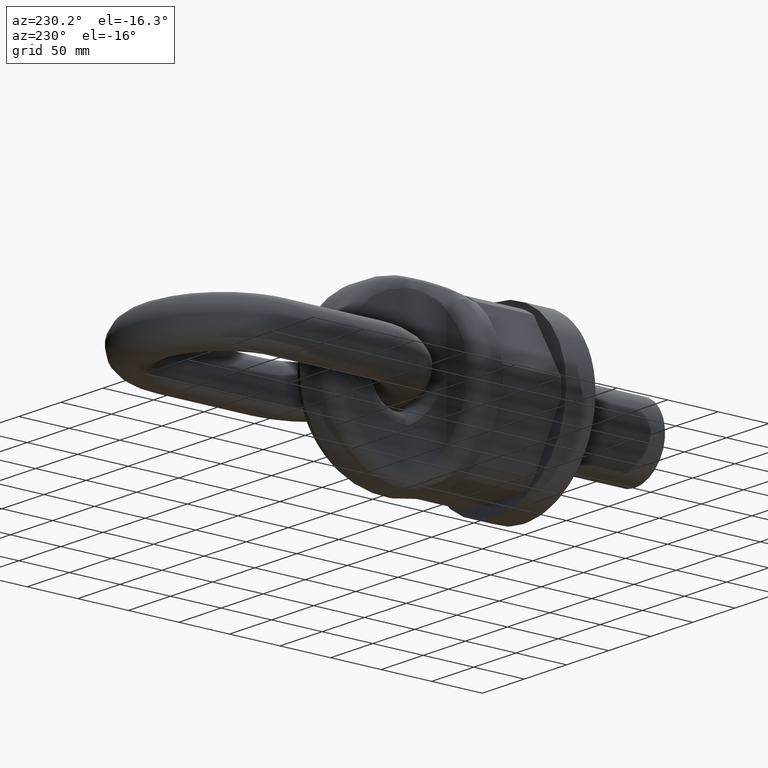
[diagram: clean part render]
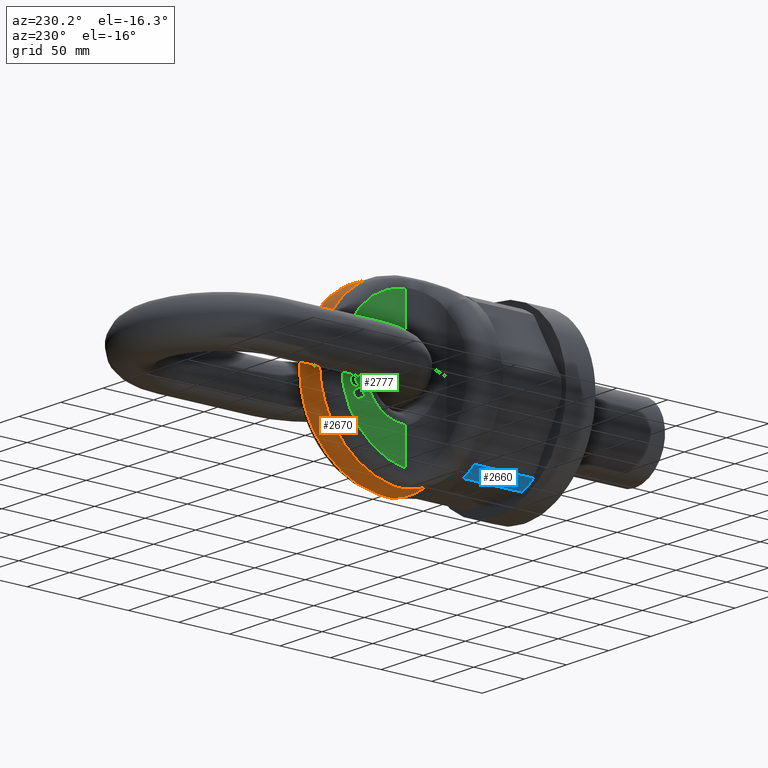
[diagram: same view with three faces highlighted in distinct colors, each labeled with its STEP entity id]
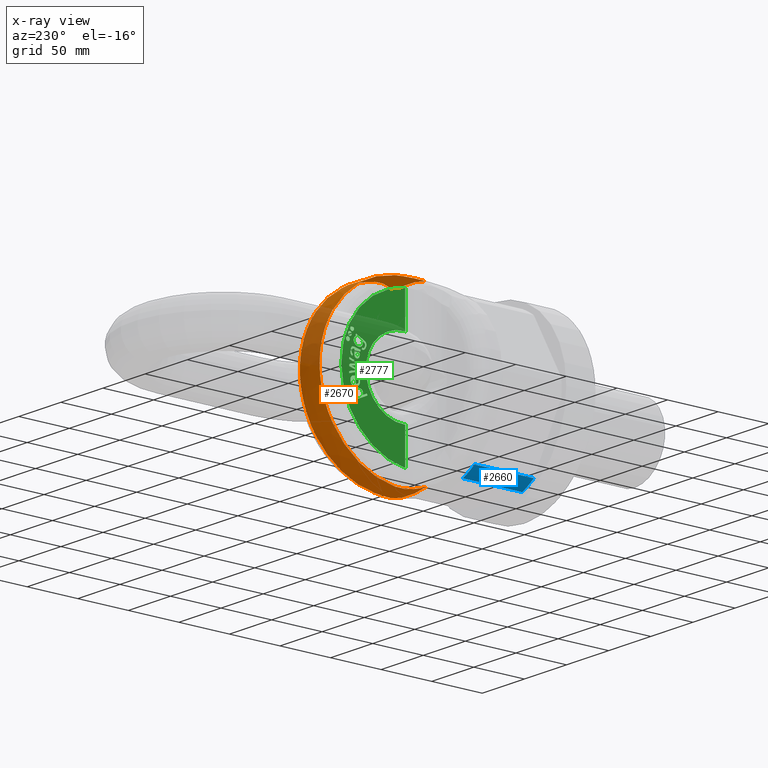
[diagram: x-ray of the same camera — body ghosted, the three highlighted faces saturated]
A machine part, auxiliary view with three faces highlighted in distinct colors.
The next image is the same camera in x-ray (body ghosted, the three faces saturated) — at least one of them is partly hidden behind the body in this view.
Their STEP definitions:

[orange] entity #2670 — the highlighted spherical surface has radius 85 mm.
#315=SPHERICAL_SURFACE('',#5660,85.);
#361=B_SPLINE_CURVE_WITH_KNOTS('',3,(#7089,#7090,#7091,#7092,#7093,#7094),
 .UNSPECIFIED.,.F.,.F.,(4,2,4),(0.,0.499999999999999,1.),.UNSPECIFIED.);
#362=B_SPLINE_CURVE_WITH_KNOTS('',3,(#7098,#7099,#7100,#7101,#7102,#7103),
 .UNSPECIFIED.,.F.,.F.,(4,2,4),(0.,0.500000000000001,1.),.UNSPECIFIED.);
#363=B_SPLINE_CURVE_WITH_KNOTS('',3,(#7104,#7105,#7106,#7107,#7108,#7109),
 .UNSPECIFIED.,.F.,.F.,(4,2,4),(0.,0.499999999999999,1.),.UNSPECIFIED.);
#364=B_SPLINE_CURVE_WITH_KNOTS('',3,(#7113,#7114,#7115,#7116,#7117,#7118),
 .UNSPECIFIED.,.F.,.F.,(4,2,4),(0.,0.500000000000001,1.),.UNSPECIFIED.);
#1822=FACE_OUTER_BOUND('',#3106,.T.);
#2670=ADVANCED_FACE('',(#1822),#315,.T.);
#3106=EDGE_LOOP('',(#3530,#3531,#3532,#3533,#3534,#3535,#3536,#3537));
#3530=ORIENTED_EDGE('',*,*,#5068,.F.);
#3531=ORIENTED_EDGE('',*,*,#5075,.T.);
#3532=ORIENTED_EDGE('',*,*,#5076,.T.);
#3533=ORIENTED_EDGE('',*,*,#5077,.T.);
#3534=ORIENTED_EDGE('',*,*,#5072,.F.);
#3535=ORIENTED_EDGE('',*,*,#5078,.T.);
#3536=ORIENTED_EDGE('',*,*,#5079,.T.);
#3537=ORIENTED_EDGE('',*,*,#5080,.T.);
#4655=VERTEX_POINT('',#7047);
#4656=VERTEX_POINT('',#7049);
#4659=VERTEX_POINT('',#7073);
#4660=VERTEX_POINT('',#7075);
#4662=VERTEX_POINT('',#7095);
#4663=VERTEX_POINT('',#7097);
#4664=VERTEX_POINT('',#7110);
#4665=VERTEX_POINT('',#7112);
#5068=EDGE_CURVE('',#4655,#4656,#5562,.T.);
#5072=EDGE_CURVE('',#4659,#4660,#5564,.T.);
#5075=EDGE_CURVE('',#4655,#4662,#361,.T.);
#5076=EDGE_CURVE('',#4662,#4663,#5566,.T.);
#5077=EDGE_CURVE('',#4663,#4660,#362,.T.);
#5078=EDGE_CURVE('',#4659,#4664,#363,.T.);
#5079=EDGE_CURVE('',#4664,#4665,#5567,.T.);
#5080=EDGE_CURVE('',#4665,#4656,#364,.T.);
#5562=CIRCLE('',#5653,83.8560735849427);
#5564=CIRCLE('',#5655,83.8560735849427);
#5566=CIRCLE('',#5658,84.1875560268504);
#5567=CIRCLE('',#5659,84.1875560268504);
#5653=AXIS2_PLACEMENT_3D('',#7048,#5969,#5970);
#5655=AXIS2_PLACEMENT_3D('',#7074,#5973,#5974);
#5658=AXIS2_PLACEMENT_3D('',#7096,#5979,#5980);
#5659=AXIS2_PLACEMENT_3D('',#7111,#5981,#5982);
#5660=AXIS2_PLACEMENT_3D('',#7119,#5983,#5984);
#5969=DIRECTION('',(0.,-1.,0.));
#5970=DIRECTION('',(0.,0.,-1.));
#5973=DIRECTION('',(0.,-1.,0.));
#5974=DIRECTION('',(0.,0.,-1.));
#5979=DIRECTION('',(1.,2.80359349652817E-16,2.34291072916505E-15));
#5980=DIRECTION('',(2.8847646623605E-16,-1.,6.58847756319972E-31));
#5981=DIRECTION('',(-1.,2.80359349652817E-16,0.));
#5982=DIRECTION('',(-2.8847646623605E-16,-1.,0.));
#5983=DIRECTION('',(6.12323399573677E-17,-1.,0.));
#5984=DIRECTION('',(1.,0.,0.));
#7047=CARTESIAN_POINT('',(-19.3766860398297,114.101837426599,-81.5866724115967));
#7048=CARTESIAN_POINT('',(0.,114.101837426599,0.));
#7049=CARTESIAN_POINT('',(19.3766860398299,114.101837426599,-81.5866724115967));
#7073=CARTESIAN_POINT('',(19.3766860398299,114.101837426599,81.5866724115967));
#7074=CARTESIAN_POINT('',(0.,114.101837426599,0.));
#7075=CARTESIAN_POINT('',(-19.3766860398301,114.101837426599,81.5866724115966));
#7089=CARTESIAN_POINT('',(-19.3766860398297,114.101837426599,-81.5866724115967));
#7090=CARTESIAN_POINT('',(-16.9548190947046,117.489688953281,-82.7389766291779));
#7091=CARTESIAN_POINT('',(-15.0325226436263,121.262971500498,-83.4994581279985));
#7092=CARTESIAN_POINT('',(-12.3936445152548,129.427238348949,-84.1895739627444));
#7093=CARTESIAN_POINT('',(-11.7241379310343,133.672876030424,-84.1073819787326));
#7094=CARTESIAN_POINT('',(-11.7241379310343,137.965517241379,-83.5956521350594));
#7095=CARTESIAN_POINT('',(-11.7241379310343,137.965517241379,-83.5956521350594));
#7096=CARTESIAN_POINT('',(-11.7241379310345,128.,-2.74686085488316E-14));
#7097=CARTESIAN_POINT('',(-11.7241379310347,137.965517241379,83.5956521350593));
#7098=CARTESIAN_POINT('',(-11.7241379310347,137.965517241379,83.5956521350593));
#7099=CARTESIAN_POINT('',(-11.7241379310347,133.671597519416,84.1075343912464));
#7100=CARTESIAN_POINT('',(-12.3933751738419,129.427306287298,84.1897361149016));
#7101=CARTESIAN_POINT('',(-15.0341766274961,121.258620101297,83.4989338179162));
#7102=CARTESIAN_POINT('',(-16.9546433285234,117.48993482547,82.7390602572701));
#7103=CARTESIAN_POINT('',(-19.3766860398301,114.101837426599,81.5866724115966));
#7104=CARTESIAN_POINT('',(19.3766860398299,114.101837426599,81.5866724115967));
#7105=CARTESIAN_POINT('',(16.9548190947048,117.489688953281,82.7389766291779));
#7106=CARTESIAN_POINT('',(15.0325226436265,121.262971500498,83.4994581279985));
#7107=CARTESIAN_POINT('',(12.393644515255,129.427238348949,84.1895739627444));
#7108=CARTESIAN_POINT('',(11.7241379310345,133.672876030424,84.1073819787325));
#7109=CARTESIAN_POINT('',(11.7241379310345,137.965517241379,83.5956521350594));
#7110=CARTESIAN_POINT('',(11.7241379310345,137.965517241379,83.5956521350594));
#7111=CARTESIAN_POINT('',(11.7241379310345,128.,0.));
#7112=CARTESIAN_POINT('',(11.7241379310345,137.965517241379,-83.5956521350594));
#7113=CARTESIAN_POINT('',(11.7241379310345,137.965517241379,-83.5956521350594));
#7114=CARTESIAN_POINT('',(11.7241379310345,133.671597519416,-84.1075343912464));
#7115=CARTESIAN_POINT('',(12.3933751738417,129.427306287298,-84.1897361149017));
#7116=CARTESIAN_POINT('',(15.0341766274959,121.258620101297,-83.4989338179162));
#7117=CARTESIAN_POINT('',(16.9546433285232,117.48993482547,-82.7390602572701));
#7118=CARTESIAN_POINT('',(19.3766860398299,114.101837426599,-81.5866724115967));
#7119=CARTESIAN_POINT('',(0.,128.,0.));

[blue] entity #2660 — the highlighted cylindrical surface (partial cylindrical patch) has radius 79.53 mm, axis along (-0, 1, 0).
#1818=FACE_OUTER_BOUND('',#3083,.T.);
#2026=CYLINDRICAL_SURFACE('',#5635,79.5299995808709);
#2050=LINE('',#6611,#2306);
#2054=LINE('',#6619,#2310);
#2306=VECTOR('',#5848,1.);
#2310=VECTOR('',#5854,1.);
#2660=ADVANCED_FACE('',(#1818),#2026,.T.);
#3083=EDGE_LOOP('',(#3424,#3425,#3426,#3427));
#3424=ORIENTED_EDGE('',*,*,#4951,.F.);
#3425=ORIENTED_EDGE('',*,*,#4960,.T.);
#3426=ORIENTED_EDGE('',*,*,#4975,.T.);
#3427=ORIENTED_EDGE('',*,*,#4964,.T.);
#4553=VERTEX_POINT('',#6591);
#4554=VERTEX_POINT('',#6593);
#4561=VERTEX_POINT('',#6612);
#4564=VERTEX_POINT('',#6620);
#4951=EDGE_CURVE('',#4553,#4554,#5543,.T.);
#4960=EDGE_CURVE('',#4553,#4561,#2050,.T.);
#4964=EDGE_CURVE('',#4564,#4554,#2054,.T.);
#4975=EDGE_CURVE('',#4561,#4564,#5547,.T.);
#5543=CIRCLE('',#5611,79.5299995808709);
#5547=CIRCLE('',#5623,79.5299995808709);
#5611=AXIS2_PLACEMENT_3D('',#6592,#5829,#5830);
#5623=AXIS2_PLACEMENT_3D('',#6641,#5873,#5874);
#5635=AXIS2_PLACEMENT_3D('',#6653,#5897,#5898);
#5829=DIRECTION('',(5.39262084851817E-17,-1.,0.));
#5830=DIRECTION('',(-1.,-4.36243803626035E-17,0.));
#5848=DIRECTION('',(-2.4492935982947E-17,1.,0.));
#5854=DIRECTION('',(2.4492935982947E-17,-1.,0.));
#5873=DIRECTION('',(0.,-1.,0.));
#5874=DIRECTION('',(0.,0.,-1.));
#5897=DIRECTION('',(-2.4492935982947E-17,1.,0.));
#5898=DIRECTION('',(-1.,-2.4492935982947E-17,0.));
#6591=CARTESIAN_POINT('',(-46.4408114203888,29.3333333333333,-64.5621550751616));
#6592=CARTESIAN_POINT('',(-7.1845945549978E-16,29.3333333333333,0.));
#6593=CARTESIAN_POINT('',(-32.692060707966,29.3333333333333,-72.5));
#6611=CARTESIAN_POINT('',(-46.4408114203888,4.00362275035415E-16,-64.5621550751616));
#6612=CARTESIAN_POINT('',(-46.4408114203888,88.,-64.5621550751616));
#6619=CARTESIAN_POINT('',(-32.692060707966,-8.00724550070829E-16,-72.5));
#6620=CARTESIAN_POINT('',(-32.692060707966,88.,-72.5));
#6641=CARTESIAN_POINT('',(-2.15537836649934E-15,88.,0.));
#6653=CARTESIAN_POINT('',(0.,0.,0.));

[green] entity #2777 — the highlighted planar face has unit normal (-1, -0, -0).
#505=B_SPLINE_CURVE_WITH_KNOTS('',3,(#8344,#8345,#8346,#8347,#8348,#8349),
 .UNSPECIFIED.,.F.,.F.,(4,2,4),(0.,0.670501232539032,1.),.UNSPECIFIED.);
#506=B_SPLINE_CURVE_WITH_KNOTS('',3,(#8351,#8352,#8353,#8354),
 .UNSPECIFIED.,.F.,.F.,(4,4),(0.,1.),.UNSPECIFIED.);
#507=B_SPLINE_CURVE_WITH_KNOTS('',3,(#8356,#8357,#8358,#8359,#8360,#8361),
 .UNSPECIFIED.,.F.,.F.,(4,2,4),(0.,0.470198675496688,1.),.UNSPECIFIED.);
#508=B_SPLINE_CURVE_WITH_KNOTS('',3,(#8363,#8364,#8365,#8366),
 .UNSPECIFIED.,.F.,.F.,(4,4),(0.,1.),.UNSPECIFIED.);
#509=B_SPLINE_CURVE_WITH_KNOTS('',3,(#8370,#8371,#8372,#8373),
 .UNSPECIFIED.,.F.,.F.,(4,4),(0.,1.),.UNSPECIFIED.);
#510=B_SPLINE_CURVE_WITH_KNOTS('',3,(#8375,#8376,#8377,#8378,#8379,#8380),
 .UNSPECIFIED.,.F.,.F.,(4,2,4),(0.,0.444196428571432,1.),.UNSPECIFIED.);
#511=B_SPLINE_CURVE_WITH_KNOTS('',3,(#8382,#8383,#8384,#8385,#8386,#8387),
 .UNSPECIFIED.,.F.,.F.,(4,2,4),(0.,0.499999999999991,1.),.UNSPECIFIED.);
#512=B_SPLINE_CURVE_WITH_KNOTS('',3,(#8389,#8390,#8391,#8392,#8393,#8394,
#8395,#8396,#8397,#8398,#8399,#8400,#8401,#8402),.UNSPECIFIED.,.F.,.F.,
(4,2,2,2,2,2,4),(0.,0.149537296690972,0.323681996634888,0.497826696578803,
0.672812675266408,0.847798653954012,1.),.UNSPECIFIED.);
#513=B_SPLINE_CURVE_WITH_KNOTS('',3,(#8407,#8408,#8409,#8410),
 .UNSPECIFIED.,.F.,.F.,(4,4),(0.,1.),.UNSPECIFIED.);
#514=B_SPLINE_CURVE_WITH_KNOTS('',3,(#8415,#8416,#8417,#8418),
 .UNSPECIFIED.,.F.,.F.,(4,4),(0.,1.),.UNSPECIFIED.);
#515=B_SPLINE_CURVE_WITH_KNOTS('',3,(#8420,#8421,#8422,#8423,#8424,#8425),
 .UNSPECIFIED.,.F.,.F.,(4,2,4),(0.,0.565320665083133,1.),.UNSPECIFIED.);
#516=B_SPLINE_CURVE_WITH_KNOTS('',3,(#8427,#8428,#8429,#8430),
 .UNSPECIFIED.,.F.,.F.,(4,4),(0.,1.),.UNSPECIFIED.);
#517=B_SPLINE_CURVE_WITH_KNOTS('',3,(#8434,#8435,#8436,#8437),
 .UNSPECIFIED.,.F.,.F.,(4,4),(0.,1.),.UNSPECIFIED.);
#518=B_SPLINE_CURVE_WITH_KNOTS('',3,(#8439,#8440,#8441,#8442,#8443,#8444),
 .UNSPECIFIED.,.F.,.F.,(4,2,4),(0.,0.429530201342281,1.),.UNSPECIFIED.);
#519=B_SPLINE_CURVE_WITH_KNOTS('',3,(#8446,#8447,#8448,#8449,#8450,#8451,
#8452,#8453,#8454,#8455,#8456,#8457),.UNSPECIFIED.,.F.,.F.,(4,2,2,2,2,4),
(0.,0.253866185683642,0.504362466247587,0.754858746811531,0.877429373405766,
1.),.UNSPECIFIED.);
#520=B_SPLINE_CURVE_WITH_KNOTS('',3,(#8481,#8482,#8483,#8484),
 .UNSPECIFIED.,.F.,.F.,(4,4),(0.,1.),.UNSPECIFIED.);
#521=B_SPLINE_CURVE_WITH_KNOTS('',3,(#8486,#8487,#8488,#8489),
 .UNSPECIFIED.,.F.,.F.,(4,4),(0.,1.),.UNSPECIFIED.);
#522=B_SPLINE_CURVE_WITH_KNOTS('',3,(#8511,#8512,#8513,#8514),
 .UNSPECIFIED.,.F.,.F.,(4,4),(0.,1.),.UNSPECIFIED.);
#523=B_SPLINE_CURVE_WITH_KNOTS('',3,(#8519,#8520,#8521,#8522),
 .UNSPECIFIED.,.F.,.F.,(4,4),(0.,1.),.UNSPECIFIED.);
#524=B_SPLINE_CURVE_WITH_KNOTS('',3,(#8527,#8528,#8529,#8530),
 .UNSPECIFIED.,.F.,.F.,(4,4),(0.,1.),.UNSPECIFIED.);
#525=B_SPLINE_CURVE_WITH_KNOTS('',3,(#8532,#8533,#8534,#8535,#8536,#8537,
#8538,#8539,#8540,#8541),.UNSPECIFIED.,.F.,.F.,(4,2,2,2,4),(0.,0.296954694318529,
0.533565653962703,0.771641518085905,1.),.UNSPECIFIED.);
#526=B_SPLINE_CURVE_WITH_KNOTS('',3,(#8543,#8544,#8545,#8546),
 .UNSPECIFIED.,.F.,.F.,(4,4),(0.,1.),.UNSPECIFIED.);
#527=B_SPLINE_CURVE_WITH_KNOTS('',3,(#8550,#8551,#8552,#8553),
 .UNSPECIFIED.,.F.,.F.,(4,4),(0.,1.),.UNSPECIFIED.);
#528=B_SPLINE_CURVE_WITH_KNOTS('',3,(#8555,#8556,#8557,#8558),
 .UNSPECIFIED.,.F.,.F.,(4,4),(0.,1.),.UNSPECIFIED.);
#529=B_SPLINE_CURVE_WITH_KNOTS('',3,(#8560,#8561,#8562,#8563),
 .UNSPECIFIED.,.F.,.F.,(4,4),(0.,1.),.UNSPECIFIED.);
#530=B_SPLINE_CURVE_WITH_KNOTS('',3,(#8565,#8566,#8567,#8568),
 .UNSPECIFIED.,.F.,.F.,(4,4),(0.,1.),.UNSPECIFIED.);
#531=B_SPLINE_CURVE_WITH_KNOTS('',3,(#8570,#8571,#8572,#8573,#8574,#8575),
 .UNSPECIFIED.,.F.,.F.,(4,2,4),(0.,0.440217391304349,1.),.UNSPECIFIED.);
#532=B_SPLINE_CURVE_WITH_KNOTS('',3,(#8577,#8578,#8579,#8580),
 .UNSPECIFIED.,.F.,.F.,(4,4),(0.,1.),.UNSPECIFIED.);
#533=B_SPLINE_CURVE_WITH_KNOTS('',3,(#8584,#8585,#8586,#8587),
 .UNSPECIFIED.,.F.,.F.,(4,4),(0.,1.),.UNSPECIFIED.);
#534=B_SPLINE_CURVE_WITH_KNOTS('',3,(#8589,#8590,#8591,#8592,#8593,#8594),
 .UNSPECIFIED.,.F.,.F.,(4,2,4),(0.,0.523876404494381,1.),.UNSPECIFIED.);
#535=B_SPLINE_CURVE_WITH_KNOTS('',3,(#8596,#8597,#8598,#8599),
 .UNSPECIFIED.,.F.,.F.,(4,4),(0.,1.),.UNSPECIFIED.);
#536=B_SPLINE_CURVE_WITH_KNOTS('',3,(#8601,#8602,#8603,#8604,#8605,#8606,
#8607,#8608),.UNSPECIFIED.,.F.,.F.,(4,2,2,4),(0.,0.269230769230754,0.527644230769209,
1.),.UNSPECIFIED.);
#537=B_SPLINE_CURVE_WITH_KNOTS('',3,(#8612,#8613,#8614,#8615),
 .UNSPECIFIED.,.F.,.F.,(4,4),(0.,1.),.UNSPECIFIED.);
#538=B_SPLINE_CURVE_WITH_KNOTS('',3,(#8617,#8618,#8619,#8620),
 .UNSPECIFIED.,.F.,.F.,(4,4),(0.,1.),.UNSPECIFIED.);
#539=B_SPLINE_CURVE_WITH_KNOTS('',3,(#8622,#8623,#8624,#8625,#8626,#8627,
#8628,#8629,#8630,#8631),.UNSPECIFIED.,.F.,.F.,(4,2,2,2,4),(0.,0.245990994549334,
0.50792584985649,0.769860705163652,1.),.UNSPECIFIED.);
#2181=LINE('',#8341,#2483);
#2182=LINE('',#8368,#2484);
#2183=LINE('',#8404,#2485);
#2184=LINE('',#8406,#2486);
#2185=LINE('',#8413,#2487);
#2186=LINE('',#8432,#2488);
#2187=LINE('',#8464,#2489);
#2188=LINE('',#8469,#2490);
#2189=LINE('',#8472,#2491);
#2190=LINE('',#8475,#2492);
#2191=LINE('',#8477,#2493);
#2192=LINE('',#8479,#2494);
#2193=LINE('',#8491,#2495);
#2194=LINE('',#8493,#2496);
#2195=LINE('',#8495,#2497);
#2196=LINE('',#8497,#2498);
#2197=LINE('',#8499,#2499);
#2198=LINE('',#8501,#2500);
#2199=LINE('',#8503,#2501);
#2200=LINE('',#8505,#2502);
#2201=LINE('',#8507,#2503);
#2202=LINE('',#8509,#2504);
#2203=LINE('',#8516,#2505);
#2204=LINE('',#8518,#2506);
#2205=LINE('',#8525,#2507);
#2206=LINE('',#8548,#2508);
#2207=LINE('',#8582,#2509);
#2208=LINE('',#8609,#2510);
#2209=LINE('',#8633,#2511);
#2210=LINE('',#8635,#2512);
#2211=LINE('',#8637,#2513);
#2212=LINE('',#8639,#2514);
#2213=LINE('',#8641,#2515);
#2214=LINE('',#8643,#2516);
#2483=VECTOR('',#6247,1.);
#2484=VECTOR('',#6248,1.);
#2485=VECTOR('',#6249,1.);
#2486=VECTOR('',#6250,1.);
#2487=VECTOR('',#6251,1.);
#2488=VECTOR('',#6252,1.);
#2489=VECTOR('',#6259,1.);
#2490=VECTOR('',#6262,1.);
#2491=VECTOR('',#6265,1.);
#2492=VECTOR('',#6266,1.);
#2493=VECTOR('',#6267,1.);
#2494=VECTOR('',#6268,1.);
#2495=VECTOR('',#6269,1.);
#2496=VECTOR('',#6270,1.);
#2497=VECTOR('',#6271,1.);
#2498=VECTOR('',#6272,1.);
#2499=VECTOR('',#6273,1.);
#2500=VECTOR('',#6274,1.);
#2501=VECTOR('',#6275,1.);
#2502=VECTOR('',#6276,1.);
#2503=VECTOR('',#6277,1.);
#2504=VECTOR('',#6278,1.);
#2505=VECTOR('',#6279,1.);
#2506=VECTOR('',#6280,1.);
#2507=VECTOR('',#6281,1.);
#2508=VECTOR('',#6282,1.);
#2509=VECTOR('',#6283,1.);
#2510=VECTOR('',#6284,1.);
#2511=VECTOR('',#6285,1.);
#2512=VECTOR('',#6286,1.);
#2513=VECTOR('',#6287,1.);
#2514=VECTOR('',#6288,1.);
#2515=VECTOR('',#6289,1.);
#2516=VECTOR('',#6290,1.);
#2777=ADVANCED_FACE('',(#3034,#3035,#3036,#3037,#3038,#3039,#3040,#3041,
#3042),#2946,.T.);
#2946=PLANE('',#5734);
#3034=FACE_BOUND('',#3221,.T.);
#3035=FACE_BOUND('',#3222,.T.);
#3036=FACE_BOUND('',#3223,.T.);
#3037=FACE_BOUND('',#3224,.T.);
#3038=FACE_BOUND('',#3225,.T.);
#3039=FACE_BOUND('',#3226,.T.);
#3040=FACE_BOUND('',#3227,.T.);
#3041=FACE_BOUND('',#3228,.T.);
#3042=FACE_BOUND('',#3229,.T.);
#3221=EDGE_LOOP('',(#3998,#3999,#4000,#4001,#4002,#4003,#4004,#4005,#4006,
#4007,#4008,#4009));
#3222=EDGE_LOOP('',(#4010,#4011,#4012,#4013,#4014,#4015,#4016,#4017,#4018));
#3223=EDGE_LOOP('',(#4019));
#3224=EDGE_LOOP('',(#4020));
#3225=EDGE_LOOP('',(#4021));
#3226=EDGE_LOOP('',(#4022,#4023,#4024,#4025));
#3227=EDGE_LOOP('',(#4026,#4027,#4028,#4029,#4030,#4031,#4032,#4033,#4034,
#4035,#4036,#4037,#4038,#4039,#4040,#4041,#4042,#4043,#4044));
#3228=EDGE_LOOP('',(#4045,#4046,#4047,#4048,#4049,#4050,#4051,#4052,#4053,
#4054,#4055,#4056,#4057,#4058,#4059,#4060,#4061));
#3229=EDGE_LOOP('',(#4062,#4063,#4064,#4065,#4066,#4067,#4068,#4069,#4070,
#4071));
#3998=ORIENTED_EDGE('',*,*,#5269,.T.);
#3999=ORIENTED_EDGE('',*,*,#5270,.T.);
#4000=ORIENTED_EDGE('',*,*,#5271,.T.);
#4001=ORIENTED_EDGE('',*,*,#5272,.T.);
#4002=ORIENTED_EDGE('',*,*,#5273,.T.);
#4003=ORIENTED_EDGE('',*,*,#5274,.T.);
#4004=ORIENTED_EDGE('',*,*,#5275,.T.);
#4005=ORIENTED_EDGE('',*,*,#5276,.T.);
#4006=ORIENTED_EDGE('',*,*,#5277,.T.);
#4007=ORIENTED_EDGE('',*,*,#5278,.T.);
#4008=ORIENTED_EDGE('',*,*,#5279,.T.);
#4009=ORIENTED_EDGE('',*,*,#5280,.T.);
#4010=ORIENTED_EDGE('',*,*,#5281,.T.);
#4011=ORIENTED_EDGE('',*,*,#5282,.T.);
#4012=ORIENTED_EDGE('',*,*,#5283,.T.);
#4013=ORIENTED_EDGE('',*,*,#5284,.T.);
#4014=ORIENTED_EDGE('',*,*,#5285,.T.);
#4015=ORIENTED_EDGE('',*,*,#5286,.T.);
#4016=ORIENTED_EDGE('',*,*,#5287,.T.);
#4017=ORIENTED_EDGE('',*,*,#5288,.T.);
#4018=ORIENTED_EDGE('',*,*,#5289,.T.);
#4019=ORIENTED_EDGE('',*,*,#5290,.T.);
#4020=ORIENTED_EDGE('',*,*,#5291,.T.);
#4021=ORIENTED_EDGE('',*,*,#5292,.T.);
#4022=ORIENTED_EDGE('',*,*,#5293,.T.);
#4023=ORIENTED_EDGE('',*,*,#5294,.T.);
#4024=ORIENTED_EDGE('',*,*,#5295,.T.);
#4025=ORIENTED_EDGE('',*,*,#5296,.T.);
#4026=ORIENTED_EDGE('',*,*,#5297,.T.);
#4027=ORIENTED_EDGE('',*,*,#5298,.T.);
#4028=ORIENTED_EDGE('',*,*,#5299,.T.);
#4029=ORIENTED_EDGE('',*,*,#5300,.T.);
#4030=ORIENTED_EDGE('',*,*,#5301,.T.);
#4031=ORIENTED_EDGE('',*,*,#5302,.T.);
#4032=ORIENTED_EDGE('',*,*,#5303,.T.);
#4033=ORIENTED_EDGE('',*,*,#5304,.T.);
#4034=ORIENTED_EDGE('',*,*,#5305,.T.);
#4035=ORIENTED_EDGE('',*,*,#5306,.T.);
#4036=ORIENTED_EDGE('',*,*,#5307,.T.);
#4037=ORIENTED_EDGE('',*,*,#5308,.T.);
#4038=ORIENTED_EDGE('',*,*,#5309,.T.);
#4039=ORIENTED_EDGE('',*,*,#5310,.T.);
#4040=ORIENTED_EDGE('',*,*,#5311,.T.);
#4041=ORIENTED_EDGE('',*,*,#5312,.T.);
#4042=ORIENTED_EDGE('',*,*,#5313,.T.);
#4043=ORIENTED_EDGE('',*,*,#5314,.T.);
#4044=ORIENTED_EDGE('',*,*,#5315,.T.);
#4045=ORIENTED_EDGE('',*,*,#5316,.T.);
#4046=ORIENTED_EDGE('',*,*,#5317,.T.);
#4047=ORIENTED_EDGE('',*,*,#5318,.T.);
#4048=ORIENTED_EDGE('',*,*,#5319,.T.);
#4049=ORIENTED_EDGE('',*,*,#5320,.T.);
#4050=ORIENTED_EDGE('',*,*,#5321,.T.);
#4051=ORIENTED_EDGE('',*,*,#5322,.T.);
#4052=ORIENTED_EDGE('',*,*,#5323,.T.);
#4053=ORIENTED_EDGE('',*,*,#5324,.T.);
#4054=ORIENTED_EDGE('',*,*,#5325,.T.);
#4055=ORIENTED_EDGE('',*,*,#5326,.T.);
#4056=ORIENTED_EDGE('',*,*,#5327,.T.);
#4057=ORIENTED_EDGE('',*,*,#5328,.T.);
#4058=ORIENTED_EDGE('',*,*,#5329,.T.);
#4059=ORIENTED_EDGE('',*,*,#5330,.T.);
#4060=ORIENTED_EDGE('',*,*,#5331,.T.);
#4061=ORIENTED_EDGE('',*,*,#5332,.T.);
#4062=ORIENTED_EDGE('',*,*,#5333,.T.);
#4063=ORIENTED_EDGE('',*,*,#5334,.T.);
#4064=ORIENTED_EDGE('',*,*,#5335,.T.);
#4065=ORIENTED_EDGE('',*,*,#5336,.T.);
#4066=ORIENTED_EDGE('',*,*,#5337,.T.);
#4067=ORIENTED_EDGE('',*,*,#5338,.T.);
#4068=ORIENTED_EDGE('',*,*,#5339,.T.);
#4069=ORIENTED_EDGE('',*,*,#5340,.T.);
#4070=ORIENTED_EDGE('',*,*,#5341,.T.);
#4071=ORIENTED_EDGE('',*,*,#5342,.T.);
#4765=VERTEX_POINT('',#8342);
#4766=VERTEX_POINT('',#8343);
#4767=VERTEX_POINT('',#8350);
#4768=VERTEX_POINT('',#8355);
#4769=VERTEX_POINT('',#8362);
#4770=VERTEX_POINT('',#8367);
#4771=VERTEX_POINT('',#8369);
#4772=VERTEX_POINT('',#8374);
#4773=VERTEX_POINT('',#8381);
#4774=VERTEX_POINT('',#8388);
#4775=VERTEX_POINT('',#8403);
#4776=VERTEX_POINT('',#8405);
#4777=VERTEX_POINT('',#8411);
#4778=VERTEX_POINT('',#8412);
#4779=VERTEX_POINT('',#8414);
#4780=VERTEX_POINT('',#8419);
#4781=VERTEX_POINT('',#8426);
#4782=VERTEX_POINT('',#8431);
#4783=VERTEX_POINT('',#8433);
#4784=VERTEX_POINT('',#8438);
#4785=VERTEX_POINT('',#8445);
#4786=VERTEX_POINT('',#8459);
#4787=VERTEX_POINT('',#8461);
#4788=VERTEX_POINT('',#8463);
#4789=VERTEX_POINT('',#8465);
#4790=VERTEX_POINT('',#8466);
#4791=VERTEX_POINT('',#8468);
#4792=VERTEX_POINT('',#8470);
#4793=VERTEX_POINT('',#8473);
#4794=VERTEX_POINT('',#8474);
#4795=VERTEX_POINT('',#8476);
#4796=VERTEX_POINT('',#8478);
#4797=VERTEX_POINT('',#8480);
#4798=VERTEX_POINT('',#8485);
#4799=VERTEX_POINT('',#8490);
#4800=VERTEX_POINT('',#8492);
#4801=VERTEX_POINT('',#8494);
#4802=VERTEX_POINT('',#8496);
#4803=VERTEX_POINT('',#8498);
#4804=VERTEX_POINT('',#8500);
#4805=VERTEX_POINT('',#8502);
#4806=VERTEX_POINT('',#8504);
#4807=VERTEX_POINT('',#8506);
#4808=VERTEX_POINT('',#8508);
#4809=VERTEX_POINT('',#8510);
#4810=VERTEX_POINT('',#8515);
#4811=VERTEX_POINT('',#8517);
#4812=VERTEX_POINT('',#8523);
#4813=VERTEX_POINT('',#8524);
#4814=VERTEX_POINT('',#8526);
#4815=VERTEX_POINT('',#8531);
#4816=VERTEX_POINT('',#8542);
#4817=VERTEX_POINT('',#8547);
#4818=VERTEX_POINT('',#8549);
#4819=VERTEX_POINT('',#8554);
#4820=VERTEX_POINT('',#8559);
#4821=VERTEX_POINT('',#8564);
#4822=VERTEX_POINT('',#8569);
#4823=VERTEX_POINT('',#8576);
#4824=VERTEX_POINT('',#8581);
#4825=VERTEX_POINT('',#8583);
#4826=VERTEX_POINT('',#8588);
#4827=VERTEX_POINT('',#8595);
#4828=VERTEX_POINT('',#8600);
#4829=VERTEX_POINT('',#8610);
#4830=VERTEX_POINT('',#8611);
#4831=VERTEX_POINT('',#8616);
#4832=VERTEX_POINT('',#8621);
#4833=VERTEX_POINT('',#8632);
#4834=VERTEX_POINT('',#8634);
#4835=VERTEX_POINT('',#8636);
#4836=VERTEX_POINT('',#8638);
#4837=VERTEX_POINT('',#8640);
#4838=VERTEX_POINT('',#8642);
#5269=EDGE_CURVE('',#4765,#4766,#2181,.T.);
#5270=EDGE_CURVE('',#4766,#4767,#505,.T.);
#5271=EDGE_CURVE('',#4767,#4768,#506,.T.);
#5272=EDGE_CURVE('',#4768,#4769,#507,.T.);
#5273=EDGE_CURVE('',#4769,#4770,#508,.T.);
#5274=EDGE_CURVE('',#4770,#4771,#2182,.T.);
#5275=EDGE_CURVE('',#4771,#4772,#509,.T.);
#5276=EDGE_CURVE('',#4772,#4773,#510,.T.);
#5277=EDGE_CURVE('',#4773,#4774,#511,.T.);
#5278=EDGE_CURVE('',#4774,#4775,#512,.T.);
#5279=EDGE_CURVE('',#4775,#4776,#2183,.T.);
#5280=EDGE_CURVE('',#4776,#4765,#2184,.T.);
#5281=EDGE_CURVE('',#4777,#4778,#513,.T.);
#5282=EDGE_CURVE('',#4778,#4779,#2185,.T.);
#5283=EDGE_CURVE('',#4779,#4780,#514,.T.);
#5284=EDGE_CURVE('',#4780,#4781,#515,.T.);
#5285=EDGE_CURVE('',#4781,#4782,#516,.T.);
#5286=EDGE_CURVE('',#4782,#4783,#2186,.T.);
#5287=EDGE_CURVE('',#4783,#4784,#517,.T.);
#5288=EDGE_CURVE('',#4784,#4785,#518,.T.);
#5289=EDGE_CURVE('',#4785,#4777,#519,.T.);
#5290=EDGE_CURVE('',#4786,#4786,#5582,.T.);
#5291=EDGE_CURVE('',#4787,#4787,#5583,.T.);
#5292=EDGE_CURVE('',#4788,#4788,#5584,.T.);
#5293=EDGE_CURVE('',#4789,#4790,#2187,.T.);
#5294=EDGE_CURVE('',#4790,#4791,#5585,.T.);
#5295=EDGE_CURVE('',#4791,#4792,#2188,.T.);
#5296=EDGE_CURVE('',#4792,#4789,#5586,.T.);
#5297=EDGE_CURVE('',#4793,#4794,#2189,.T.);
#5298=EDGE_CURVE('',#4794,#4795,#2190,.T.);
#5299=EDGE_CURVE('',#4795,#4796,#2191,.T.);
#5300=EDGE_CURVE('',#4796,#4797,#2192,.T.);
#5301=EDGE_CURVE('',#4797,#4798,#520,.T.);
#5302=EDGE_CURVE('',#4798,#4799,#521,.T.);
#5303=EDGE_CURVE('',#4799,#4800,#2193,.T.);
#5304=EDGE_CURVE('',#4800,#4801,#2194,.T.);
#5305=EDGE_CURVE('',#4801,#4802,#2195,.T.);
#5306=EDGE_CURVE('',#4802,#4803,#2196,.T.);
#5307=EDGE_CURVE('',#4803,#4804,#2197,.T.);
#5308=EDGE_CURVE('',#4804,#4805,#2198,.T.);
#5309=EDGE_CURVE('',#4805,#4806,#2199,.T.);
#5310=EDGE_CURVE('',#4806,#4807,#2200,.T.);
#5311=EDGE_CURVE('',#4807,#4808,#2201,.T.);
#5312=EDGE_CURVE('',#4808,#4809,#2202,.T.);
#5313=EDGE_CURVE('',#4809,#4810,#522,.T.);
#5314=EDGE_CURVE('',#4810,#4811,#2203,.T.);
#5315=EDGE_CURVE('',#4811,#4793,#2204,.T.);
#5316=EDGE_CURVE('',#4812,#4813,#523,.T.);
#5317=EDGE_CURVE('',#4813,#4814,#2205,.T.);
#5318=EDGE_CURVE('',#4814,#4815,#524,.T.);
#5319=EDGE_CURVE('',#4815,#4816,#525,.T.);
#5320=EDGE_CURVE('',#4816,#4817,#526,.T.);
#5321=EDGE_CURVE('',#4817,#4818,#2206,.T.);
#5322=EDGE_CURVE('',#4818,#4819,#527,.T.);
#5323=EDGE_CURVE('',#4819,#4820,#528,.T.);
#5324=EDGE_CURVE('',#4820,#4821,#529,.T.);
#5325=EDGE_CURVE('',#4821,#4822,#530,.T.);
#5326=EDGE_CURVE('',#4822,#4823,#531,.T.);
#5327=EDGE_CURVE('',#4823,#4824,#532,.T.);
#5328=EDGE_CURVE('',#4824,#4825,#2207,.T.);
#5329=EDGE_CURVE('',#4825,#4826,#533,.T.);
#5330=EDGE_CURVE('',#4826,#4827,#534,.T.);
#5331=EDGE_CURVE('',#4827,#4828,#535,.T.);
#5332=EDGE_CURVE('',#4828,#4812,#536,.T.);
#5333=EDGE_CURVE('',#4829,#4830,#2208,.T.);
#5334=EDGE_CURVE('',#4830,#4831,#537,.T.);
#5335=EDGE_CURVE('',#4831,#4832,#538,.T.);
#5336=EDGE_CURVE('',#4832,#4833,#539,.T.);
#5337=EDGE_CURVE('',#4833,#4834,#2209,.T.);
#5338=EDGE_CURVE('',#4834,#4835,#2210,.T.);
#5339=EDGE_CURVE('',#4835,#4836,#2211,.T.);
#5340=EDGE_CURVE('',#4836,#4837,#2212,.T.);
#5341=EDGE_CURVE('',#4837,#4838,#2213,.T.);
#5342=EDGE_CURVE('',#4838,#4829,#2214,.T.);
#5582=CIRCLE('',#5729,1.875);
#5583=CIRCLE('',#5730,1.875);
#5584=CIRCLE('',#5731,1.875);
#5585=CIRCLE('',#5732,37.);
#5586=CIRCLE('',#5733,71.8070330817254);
#5729=AXIS2_PLACEMENT_3D('',#8458,#6253,#6254);
#5730=AXIS2_PLACEMENT_3D('',#8460,#6255,#6256);
#5731=AXIS2_PLACEMENT_3D('',#8462,#6257,#6258);
#5732=AXIS2_PLACEMENT_3D('',#8467,#6260,#6261);
#5733=AXIS2_PLACEMENT_3D('',#8471,#6263,#6264);
#5734=AXIS2_PLACEMENT_3D('',#8644,#6291,#6292);
#6247=DIRECTION('',(-2.0036572277865E-15,-0.423532192675403,0.905881052769935));
#6248=DIRECTION('',(-1.79384980646576E-15,-0.55472970678869,0.832030619872931));
#6249=DIRECTION('',(-2.00365722778656E-15,-0.423532192675364,0.905881052769953));
#6250=DIRECTION('',(-1.24627034118342E-15,0.905881052769928,0.423532192675417));
#6251=DIRECTION('',(2.3438654475086E-15,-0.232588029962009,-0.972575348401548));
#6252=DIRECTION('',(-2.35959140620282E-15,0.113483405232183,0.993539891869928));
#6253=DIRECTION('',(1.,2.80359349652817E-16,2.34291072916505E-15));
#6254=DIRECTION('',(0.,0.999999999999994,0.));
#6255=DIRECTION('',(1.,2.80359349652817E-16,2.34291072916505E-15));
#6256=DIRECTION('',(0.,0.999999999999994,0.));
#6257=DIRECTION('',(1.,2.80359349652817E-16,2.34291072916505E-15));
#6258=DIRECTION('',(0.,0.999999999999994,0.));
#6259=DIRECTION('',(-2.34291072916505E-15,0.,1.));
#6260=DIRECTION('',(1.,2.80359349652817E-16,2.34291072916505E-15));
#6261=DIRECTION('',(-2.81306509617861E-16,1.,-6.66267656436665E-31));
#6262=DIRECTION('',(-2.34291072916505E-15,0.,1.));
#6263=DIRECTION('',(-1.,-2.80359349652817E-16,-2.34291072916505E-15));
#6264=DIRECTION('',(-2.89897532572188E-16,1.,-6.86615286279818E-31));
#6265=DIRECTION('',(-2.34307022050018E-15,0.000570240523421913,0.99999983741286));
#6266=DIRECTION('',(9.78664537670032E-16,-0.952766972967784,-0.303702313494325));
#6267=DIRECTION('',(2.34307022050018E-15,-0.000570240523418955,-0.99999983741286));
#6268=DIRECTION('',(3.37680446366829E-16,0.965693062308118,-0.259686174853361));
#6269=DIRECTION('',(2.34307022050003E-15,-0.000570240522863011,-0.99999983741286));
#6270=DIRECTION('',(8.65846807337891E-16,-0.967252486810399,-0.253816127854595));
#6271=DIRECTION('',(2.34307022050018E-15,-0.000570240523406337,-0.99999983741286));
#6272=DIRECTION('',(4.32668705176292E-16,0.954295358425771,-0.298865134947238));
#6273=DIRECTION('',(-2.34307022050017E-15,0.000570240523384696,0.99999983741286));
#6274=DIRECTION('',(-3.62670062758447E-16,-0.962856725352172,0.270012826443657));
#6275=DIRECTION('',(-8.50790497622688E-16,0.968968441263515,0.247184465198267));
#6276=DIRECTION('',(-8.92362571233395E-16,0.964108151869888,0.265509833147531));
#6277=DIRECTION('',(-2.34307022050018E-15,0.000570240523418747,0.99999983741286));
#6278=DIRECTION('',(-3.23020662435872E-16,-0.967303459956489,0.253621797872749));
#6279=DIRECTION('',(-2.34307022050025E-15,0.000570240523638507,0.99999983741286));
#6280=DIRECTION('',(-9.40384644493174E-16,0.958009527315836,0.286736369461723));
#6281=DIRECTION('',(2.21438001159964E-15,0.23147867512763,-0.972839978085377));
#6282=DIRECTION('',(-2.30936908893074E-15,-0.0875493793571756,0.996160180982042));
#6283=DIRECTION('',(2.09316008703514E-15,0.352961332668938,-0.935637909471697));
#6284=DIRECTION('',(-2.24029614390192E-15,0.424565057235773,0.90539743327137));
#6285=DIRECTION('',(2.24029614390199E-15,-0.424565057235683,-0.905397433271412));
#6286=DIRECTION('',(-7.40881392255665E-16,-0.905397433271618,0.424565057235244));
#6287=DIRECTION('',(2.24029614390235E-15,-0.424565057235248,-0.905397433271616));
#6288=DIRECTION('',(7.4088139225566E-16,0.905397433271619,-0.424565057235242));
#6289=DIRECTION('',(-2.24029614390235E-15,0.424565057235243,0.905397433271618));
#6290=DIRECTION('',(-7.40881392255641E-16,-0.905397433271623,0.424565057235234));
#6291=DIRECTION('',(-1.,-2.80359349652817E-16,-2.34291072916505E-15));
#6292=DIRECTION('',(-2.81025203108243E-16,1.,0.));
#8341=CARTESIAN_POINT('',(-22.4999999999998,236.092616734652,-82.7033655297968));
#8342=CARTESIAN_POINT('',(-22.5000000000001,185.86144890613,24.7346615701622));
#8343=CARTESIAN_POINT('',(-22.5000000000001,185.250969432729,26.0403988851134));
#8344=CARTESIAN_POINT('',(-22.5000000000001,185.250969432729,26.0403988851134));
#8345=CARTESIAN_POINT('',(-22.5000000000001,182.887196923582,24.9352496486618));
#8346=CARTESIAN_POINT('',(-22.5000000000001,180.523424414436,23.8301004122102));
#8347=CARTESIAN_POINT('',(-22.5000000000001,176.998043110966,22.1818570044142));
#8348=CARTESIAN_POINT('',(-22.5000000000001,176.184131400332,21.6576526062477));
#8349=CARTESIAN_POINT('',(-22.5000000000001,175.717916773387,21.1523379812591));
#8350=CARTESIAN_POINT('',(-22.5000000000001,175.717916773387,21.1523379812591));
#8351=CARTESIAN_POINT('',(-22.5000000000001,175.717916773387,21.1523379812591));
#8352=CARTESIAN_POINT('',(-22.5000000000001,175.254598926477,20.648377705825));
#8353=CARTESIAN_POINT('',(-22.5000000000001,175.005557023768,20.0183170481649));
#8354=CARTESIAN_POINT('',(-22.5000000000001,174.968034950254,19.2680509848701));
#8355=CARTESIAN_POINT('',(-22.5000000000001,174.968034950254,19.2680509848701));
#8356=CARTESIAN_POINT('',(-22.5000000000001,174.968034950254,19.2680509848701));
#8357=CARTESIAN_POINT('',(-22.5000000000001,174.928994154206,18.5134830837253));
#8358=CARTESIAN_POINT('',(-22.5000000000001,175.105917282738,17.7198067141026));
#8359=CARTESIAN_POINT('',(-22.5000000000001,175.938264013967,15.9395237835597));
#8360=CARTESIAN_POINT('',(-22.5,176.511876749547,15.248703227002));
#8361=CARTESIAN_POINT('',(-22.5,177.219642542588,14.814560206329));
#8362=CARTESIAN_POINT('',(-22.5,177.219642542588,14.814560206329));
#8363=CARTESIAN_POINT('',(-22.5,177.219642542588,14.814560206329));
#8364=CARTESIAN_POINT('',(-22.5,177.925889613095,14.3761153478059));
#8365=CARTESIAN_POINT('',(-22.5,178.746913456633,14.3792450346649));
#8366=CARTESIAN_POINT('',(-22.5,179.682573408171,14.8166999407603));
#8367=CARTESIAN_POINT('',(-22.5,179.682573408171,14.8166999407603));
#8368=CARTESIAN_POINT('',(-22.4999999999998,239.928980609688,-75.5459666255893));
#8369=CARTESIAN_POINT('',(-22.5,178.83183044965,16.092716318588));
#8370=CARTESIAN_POINT('',(-22.5000000000001,178.83183044965,16.092716318588));
#8371=CARTESIAN_POINT('',(-22.5000000000001,178.375405189292,15.9439730242921));
#8372=CARTESIAN_POINT('',(-22.5000000000001,177.964148202663,15.9779776368137));
#8373=CARTESIAN_POINT('',(-22.5000000000001,177.599437547266,16.1917826678574));
#8374=CARTESIAN_POINT('',(-22.5000000000001,177.599437547266,16.1917826678574));
#8375=CARTESIAN_POINT('',(-22.5000000000001,177.599437547266,16.1917826678574));
#8376=CARTESIAN_POINT('',(-22.5000000000001,177.236245614403,16.4098895367511));
#8377=CARTESIAN_POINT('',(-22.5000000000001,176.915325175235,16.809389962908));
#8378=CARTESIAN_POINT('',(-22.5000000000001,176.297955414323,18.1298647193371));
#8379=CARTESIAN_POINT('',(-22.5000000000001,176.194884730775,18.7353794164147));
#8380=CARTESIAN_POINT('',(-22.5000000000001,176.327604844146,19.2140773637063));
#8381=CARTESIAN_POINT('',(-22.5000000000001,176.327604844146,19.2140773637063));
#8382=CARTESIAN_POINT('',(-22.5000000000001,176.327604844146,19.2140773637063));
#8383=CARTESIAN_POINT('',(-22.5000000000001,176.464599795055,19.6911821722569));
#8384=CARTESIAN_POINT('',(-22.5000000000001,176.723061656804,20.0670388364449));
#8385=CARTESIAN_POINT('',(-22.5000000000001,177.497262437128,20.6157782977229));
#8386=CARTESIAN_POINT('',(-22.5000000000001,178.061600476781,20.9263199060151));
#8387=CARTESIAN_POINT('',(-22.5000000000001,178.803176165925,21.2730333919607));
#8388=CARTESIAN_POINT('',(-22.5000000000001,178.803176165925,21.2730333919607));
#8389=CARTESIAN_POINT('',(-22.5000000000001,178.803176165925,21.2730333919607));
#8390=CARTESIAN_POINT('',(-22.5000000000001,178.37141067749,20.324077136966));
#8391=CARTESIAN_POINT('',(-22.5000000000001,178.377535856132,19.3823027200226));
#8392=CARTESIAN_POINT('',(-22.5000000000001,179.320127187524,17.3662207258317));
#8393=CARTESIAN_POINT('',(-22.5000000000001,180.121994292984,16.6779557297424));
#8394=CARTESIAN_POINT('',(-22.5000000000001,182.312456278323,16.1001421075389));
#8395=CARTESIAN_POINT('',(-22.5000000000001,183.4590162133,16.2375128039121));
#8396=CARTESIAN_POINT('',(-22.5000000000001,185.863343642946,17.3616229341264));
#8397=CARTESIAN_POINT('',(-22.5000000000001,186.719696105121,18.1499109654541));
#8398=CARTESIAN_POINT('',(-22.5000000000001,187.726435289026,20.1794305389239));
#8399=CARTESIAN_POINT('',(-22.5000000000001,187.71567046338,21.2519316156762));
#8400=CARTESIAN_POINT('',(-22.5000000000001,186.726225176919,23.3682282119175));
#8401=CARTESIAN_POINT('',(-22.5000000000001,185.963225011579,23.9884621880212));
#8402=CARTESIAN_POINT('',(-22.5000000000001,184.894599106544,24.2431146999436));
#8403=CARTESIAN_POINT('',(-22.5000000000001,184.894599106544,24.2431146999436));
#8404=CARTESIAN_POINT('',(-22.4999999999998,235.11060830254,-83.1624900287668));
#8405=CARTESIAN_POINT('',(-22.5000000000001,184.879440474021,24.2755370711952));
#8406=CARTESIAN_POINT('',(-22.5,162.768832171476,13.9380270999578));
#8407=CARTESIAN_POINT('',(-22.5,189.588583216613,-8.51923645802513));
#8408=CARTESIAN_POINT('',(-22.5,189.014353432881,-7.93696335325778));
#8409=CARTESIAN_POINT('',(-22.5,188.02630028533,-7.47652710492433));
#8410=CARTESIAN_POINT('',(-22.5,186.626777047991,-7.141835964342));
#8411=CARTESIAN_POINT('',(-22.5,189.588583216613,-8.51923645802513));
#8412=CARTESIAN_POINT('',(-22.5,186.626777047991,-7.141835964342));
#8413=CARTESIAN_POINT('',(-22.4999999999998,168.51846723172,-82.8623953215877));
#8414=CARTESIAN_POINT('',(-22.5,185.022408519588,-13.850561605688));
#8415=CARTESIAN_POINT('',(-22.5,185.022408519588,-13.850561605688));
#8416=CARTESIAN_POINT('',(-22.5,184.064097908882,-13.5544754589197));
#8417=CARTESIAN_POINT('',(-22.5,183.388148774362,-13.0950773781586));
#8418=CARTESIAN_POINT('',(-22.5,182.995317893634,-12.4692028701774));
#8419=CARTESIAN_POINT('',(-22.5,182.995317893634,-12.4692028701774));
#8420=CARTESIAN_POINT('',(-22.5,182.995317893634,-12.4692028701774));
#8421=CARTESIAN_POINT('',(-22.5,182.599376961268,-11.8425846041061));
#8422=CARTESIAN_POINT('',(-22.5,182.494951470848,-11.1518622885281));
#8423=CARTESIAN_POINT('',(-22.5,182.813554843706,-9.81961063994011));
#8424=CARTESIAN_POINT('',(-22.5,183.079381073947,-9.36797907130319));
#8425=CARTESIAN_POINT('',(-22.5,183.474896506244,-9.04772644589673));
#8426=CARTESIAN_POINT('',(-22.5,183.474896506244,-9.04772644589673));
#8427=CARTESIAN_POINT('',(-22.5,183.474896506244,-9.04772644589673));
#8428=CARTESIAN_POINT('',(-22.5,183.871168716149,-8.72430932726323));
#8429=CARTESIAN_POINT('',(-22.5,184.397130128109,-8.53227115186019));
#8430=CARTESIAN_POINT('',(-22.5,185.056647571372,-8.46919118455075));
#8431=CARTESIAN_POINT('',(-22.5,185.056647571372,-8.46919118455075));
#8432=CARTESIAN_POINT('',(-22.4999999999998,175.829267201167,-89.2543110573568));
#8433=CARTESIAN_POINT('',(-22.5,185.240025782036,-6.86372678011394));
#8434=CARTESIAN_POINT('',(-22.5,185.240025782036,-6.86372678011394));
#8435=CARTESIAN_POINT('',(-22.5,184.258908288412,-6.89673384358378));
#8436=CARTESIAN_POINT('',(-22.5,183.444790309766,-7.19382501957879));
#8437=CARTESIAN_POINT('',(-22.5,182.79220852043,-7.75034829869153));
#8438=CARTESIAN_POINT('',(-22.5,182.79220852043,-7.75034829869153));
#8439=CARTESIAN_POINT('',(-22.5,182.79220852043,-7.75034829869153));
#8440=CARTESIAN_POINT('',(-22.5,182.136516679456,-8.30612781971409));
#8441=CARTESIAN_POINT('',(-22.5,181.688762978746,-9.09229062221199));
#8442=CARTESIAN_POINT('',(-22.5,181.124963660982,-11.4498380763642));
#8443=CARTESIAN_POINT('',(-22.5,181.278020208222,-12.5971383794686));
#8444=CARTESIAN_POINT('',(-22.5,181.908873837629,-13.5475731222713));
#8445=CARTESIAN_POINT('',(-22.5,181.908873837629,-13.5475731222713));
#8446=CARTESIAN_POINT('',(-22.5,181.908873837629,-13.5475731222713));
#8447=CARTESIAN_POINT('',(-22.5,182.536617415398,-14.4972641069838));
#8448=CARTESIAN_POINT('',(-22.5,183.552982485787,-15.141781174335));
#8449=CARTESIAN_POINT('',(-22.5,186.345808857188,-15.8096759393193));
#8450=CARTESIAN_POINT('',(-22.5,187.559433752834,-15.7118351536277));
#8451=CARTESIAN_POINT('',(-22.5,189.633547170571,-14.6555522782378));
#8452=CARTESIAN_POINT('',(-22.5,190.313310626057,-13.7241453675279));
#8453=CARTESIAN_POINT('',(-22.5,190.787810186108,-11.7400081141676));
#8454=CARTESIAN_POINT('',(-22.5,190.798456606314,-11.0768048479264));
#8455=CARTESIAN_POINT('',(-22.5,190.521516254257,-9.73260446277999));
#8456=CARTESIAN_POINT('',(-22.5,190.165923051984,-9.10225332088266));
#8457=CARTESIAN_POINT('',(-22.5,189.588583216613,-8.51923645802513));
#8458=CARTESIAN_POINT('',(-22.5000000000001,189.090111434943,29.375));
#8459=CARTESIAN_POINT('',(-22.5000000000001,190.965111434943,29.375));
#8460=CARTESIAN_POINT('',(-22.5000000000001,191.36024214172,25.0608220279929));
#8461=CARTESIAN_POINT('',(-22.5000000000001,193.23524214172,25.0608220279929));
#8462=CARTESIAN_POINT('',(-22.5000000000001,193.263287833623,20.5726105696804));
#8463=CARTESIAN_POINT('',(-22.5000000000001,195.138287833623,20.5726105696804));
#8464=CARTESIAN_POINT('',(-22.5000000000002,136.5,80.7636097245568));
#8465=CARTESIAN_POINT('',(-22.4999999999998,136.5,-71.3021738799036));
#8466=CARTESIAN_POINT('',(-22.4999999999999,136.5,-36.9459064038224));
#8467=CARTESIAN_POINT('',(-22.5,138.5,-5.27154914062136E-14));
#8468=CARTESIAN_POINT('',(-22.5000000000001,136.5,36.9459064038223));
#8469=CARTESIAN_POINT('',(-22.5000000000002,136.5,80.7636097245568));
#8470=CARTESIAN_POINT('',(-22.5000000000002,136.5,71.3021738799035));
#8471=CARTESIAN_POINT('',(-22.5,128.,-5.27154914062136E-14));
#8472=CARTESIAN_POINT('',(-22.4999999999998,191.826462712037,-93.4879259890512));
#8473=CARTESIAN_POINT('',(-22.5,191.882488980072,4.76229760048093));
#8474=CARTESIAN_POINT('',(-22.5,191.883359165552,6.28829461924397));
#8475=CARTESIAN_POINT('',(-22.5,182.177809777631,3.19457087936297));
#8476=CARTESIAN_POINT('',(-22.5,182.835281723376,3.40414547277942));
#8477=CARTESIAN_POINT('',(-22.4999999999998,182.780032870514,-93.4827673473247));
#8478=CARTESIAN_POINT('',(-22.5,182.834357731118,1.78379042940204));
#8479=CARTESIAN_POINT('',(-22.5,234.860718522692,-12.2067073310491));
#8480=CARTESIAN_POINT('',(-22.5,188.266500811304,0.323023532746367));
#8481=CARTESIAN_POINT('',(-22.5,188.266500811304,0.323023532746367));
#8482=CARTESIAN_POINT('',(-22.5,188.263299352227,0.316517906258905));
#8483=CARTESIAN_POINT('',(-22.5,188.509490715911,0.254556723094137));
#8484=CARTESIAN_POINT('',(-22.5,188.998681261232,0.140397355210644));
#8485=CARTESIAN_POINT('',(-22.5,188.998681261232,0.140397355210644));
#8486=CARTESIAN_POINT('',(-22.5,188.998681261232,0.140397355210644));
#8487=CARTESIAN_POINT('',(-22.5,189.487869951147,0.0229842623404497));
#8488=CARTESIAN_POINT('',(-22.5,189.753251515233,-0.0324804117665628));
#8489=CARTESIAN_POINT('',(-22.5,189.798019990942,-0.0325059405697336));
#8490=CARTESIAN_POINT('',(-22.5,189.798019990942,-0.0325059405697336));
#8491=CARTESIAN_POINT('',(-22.4999999999998,189.744728591611,-93.4867388997168));
#8492=CARTESIAN_POINT('',(-22.5,189.797999581475,-0.0682969154234521));
#8493=CARTESIAN_POINT('',(-22.5,188.567383111674,-0.391222223446033));
#8494=CARTESIAN_POINT('',(-22.5,182.832259266772,-1.89617253055743));
#8495=CARTESIAN_POINT('',(-22.4999999999998,182.780032870516,-93.482767347325));
#8496=CARTESIAN_POINT('',(-22.5,182.831329708296,-3.52628874889492));
#8497=CARTESIAN_POINT('',(-22.5,235.96633053881,-20.1670478738578));
#8498=CARTESIAN_POINT('',(-22.5,191.876147201882,-6.35893440406502));
#8499=CARTESIAN_POINT('',(-22.4999999999998,191.82646271204,-93.487925989052));
#8500=CARTESIAN_POINT('',(-22.5,191.87707119414,-4.73857936068764));
#8501=CARTESIAN_POINT('',(-22.5,234.536511709138,-16.7015181912251));
#8502=CARTESIAN_POINT('',(-22.5,184.715258010851,-2.73020016037215));
#8503=CARTESIAN_POINT('',(-22.5,189.531164811087,-1.5016592748623));
#8504=CARTESIAN_POINT('',(-22.5,185.936975967049,-2.41853913327817));
#8505=CARTESIAN_POINT('',(-22.5,187.777129289061,-1.91177150503467));
#8506=CARTESIAN_POINT('',(-22.5,191.879327368007,-0.782049776858535));
#8507=CARTESIAN_POINT('',(-22.4999999999998,191.826462712037,-93.4879259890513));
#8508=CARTESIAN_POINT('',(-22.5,191.880243938641,0.825290366572037));
#8509=CARTESIAN_POINT('',(-22.5,234.782244509581,-10.423384912258));
#8510=CARTESIAN_POINT('',(-22.5,187.141887919736,2.06766199266956));
#8511=CARTESIAN_POINT('',(-22.5,187.141887919736,2.06766199266956));
#8512=CARTESIAN_POINT('',(-22.5,185.834207407832,2.4165563719964));
#8513=CARTESIAN_POINT('',(-22.5,185.092437423921,2.60569546996335));
#8514=CARTESIAN_POINT('',(-22.5,184.916581678817,2.64158673654381));
#8515=CARTESIAN_POINT('',(-22.5,184.916581678817,2.64158673654381));
#8516=CARTESIAN_POINT('',(-22.4999999999998,184.861766990971,-93.483954436666));
#8517=CARTESIAN_POINT('',(-22.5,184.916602088284,2.67737771139753));
#8518=CARTESIAN_POINT('',(-22.5,184.271488674922,2.48429249380394));
#8519=CARTESIAN_POINT('',(-22.5,181.971744994887,14.2518405023853));
#8520=CARTESIAN_POINT('',(-22.5,181.54358716087,14.2001325888937));
#8521=CARTESIAN_POINT('',(-22.5,181.10292014635,14.2424405808812));
#8522=CARTESIAN_POINT('',(-22.5,180.649743951327,14.3787644783477));
#8523=CARTESIAN_POINT('',(-22.5,181.971744994887,14.2518405023853));
#8524=CARTESIAN_POINT('',(-22.5,180.649743951327,14.3787644783477));
#8525=CARTESIAN_POINT('',(-22.4999999999998,206.676550931636,-95.0046088211372));
#8526=CARTESIAN_POINT('',(-22.5,181.029340659417,12.7834259316078));
#8527=CARTESIAN_POINT('',(-22.5,181.029340659417,12.7834259316078));
#8528=CARTESIAN_POINT('',(-22.5,181.341609468125,12.7005330294535));
#8529=CARTESIAN_POINT('',(-22.5,181.72732816599,12.6819407745379));
#8530=CARTESIAN_POINT('',(-22.5,182.189607650872,12.728389377513));
#8531=CARTESIAN_POINT('',(-22.5,182.189607650872,12.728389377513));
#8532=CARTESIAN_POINT('',(-22.5,182.189607650872,12.728389377513));
#8533=CARTESIAN_POINT('',(-22.5,181.570409063324,11.5041069553504));
#8534=CARTESIAN_POINT('',(-22.5,181.399343581939,10.3028397466939));
#8535=CARTESIAN_POINT('',(-22.5,181.905472526059,8.17572168437404));
#8536=CARTESIAN_POINT('',(-22.5,182.316346450996,7.48395273417181));
#8537=CARTESIAN_POINT('',(-22.5,183.506538974473,6.61348964354894));
#8538=CARTESIAN_POINT('',(-22.5,184.184158306614,6.48709067570571));
#8539=CARTESIAN_POINT('',(-22.5,185.677389278349,6.8423917887182));
#8540=CARTESIAN_POINT('',(-22.5,186.215279614958,7.24797684810589));
#8541=CARTESIAN_POINT('',(-22.5,186.563110189454,7.88593767428765));
#8542=CARTESIAN_POINT('',(-22.5,186.563110189454,7.88593767428765));
#8543=CARTESIAN_POINT('',(-22.5,186.563110189454,7.88593767428765));
#8544=CARTESIAN_POINT('',(-22.5,186.910187595878,8.52706385472883));
#8545=CARTESIAN_POINT('',(-22.5,187.007475874891,9.51344715730037));
#8546=CARTESIAN_POINT('',(-22.5,186.85346869035,10.8514182905211));
#8547=CARTESIAN_POINT('',(-22.5,186.85346869035,10.8514182905211));
#8548=CARTESIAN_POINT('',(-22.4999999999998,196.154700773242,-94.9804802686801));
#8549=CARTESIAN_POINT('',(-22.5,186.724479550741,12.3190911124256));
#8550=CARTESIAN_POINT('',(-22.5,186.724479550741,12.3190911124256));
#8551=CARTESIAN_POINT('',(-22.5,186.679583827085,12.866950750701));
#8552=CARTESIAN_POINT('',(-22.5,186.679059430582,13.325031235759));
#8553=CARTESIAN_POINT('',(-22.5,186.71828912723,13.6989230654664));
#8554=CARTESIAN_POINT('',(-22.5,186.71828912723,13.6989230654664));
#8555=CARTESIAN_POINT('',(-22.5,186.71828912723,13.6989230654664));
#8556=CARTESIAN_POINT('',(-22.5,187.166258418751,13.8055133993701));
#8557=CARTESIAN_POINT('',(-22.5,187.487335840603,13.8651881145883));
#8558=CARTESIAN_POINT('',(-22.5,187.676904158784,13.8835377089875));
#8559=CARTESIAN_POINT('',(-22.5,187.676904158784,13.8835377089875));
#8560=CARTESIAN_POINT('',(-22.5,187.676904158784,13.8835377089875));
#8561=CARTESIAN_POINT('',(-22.5,187.870336542896,13.8994621597794));
#8562=CARTESIAN_POINT('',(-22.5,188.083547748012,13.8598906552063));
#8563=CARTESIAN_POINT('',(-22.5,188.315031437989,13.7711539037869));
#8564=CARTESIAN_POINT('',(-22.5,188.315031437989,13.7711539037869));
#8565=CARTESIAN_POINT('',(-22.5,188.315031437989,13.7711539037869));
#8566=CARTESIAN_POINT('',(-22.5,188.547268296037,13.6792517981081));
#8567=CARTESIAN_POINT('',(-22.5,188.757892683725,13.4985930974667));
#8568=CARTESIAN_POINT('',(-22.5,188.951521835053,13.2235873039962));
#8569=CARTESIAN_POINT('',(-22.5,188.951521835053,13.2235873039962));
#8570=CARTESIAN_POINT('',(-22.5,188.951521835053,13.2235873039962));
#8571=CARTESIAN_POINT('',(-22.5,189.148261884238,12.9493217211777));
#8572=CARTESIAN_POINT('',(-22.5,189.304527624774,12.5550550241046));
#8573=CARTESIAN_POINT('',(-22.5,189.581693475125,11.3902046566438));
#8574=CARTESIAN_POINT('',(-22.5,189.586245752201,10.8461239075807));
#8575=CARTESIAN_POINT('',(-22.5,189.437086785745,10.4092851762397));
#8576=CARTESIAN_POINT('',(-22.5,189.437086785745,10.4092851762397));
#8577=CARTESIAN_POINT('',(-22.5,189.437086785745,10.4092851762397));
#8578=CARTESIAN_POINT('',(-22.5,189.291038717146,9.97318665555088));
#8579=CARTESIAN_POINT('',(-22.5,188.911804171285,9.60535233942078));
#8580=CARTESIAN_POINT('',(-22.5,188.297876812017,9.31211293636823));
#8581=CARTESIAN_POINT('',(-22.5,188.297876812017,9.31211293636823));
#8582=CARTESIAN_POINT('',(-22.4999999999998,225.328393147122,-88.8492200018576));
#8583=CARTESIAN_POINT('',(-22.5,188.840877406925,7.8727146384862));
#8584=CARTESIAN_POINT('',(-22.5,188.840877406925,7.8727146384862));
#8585=CARTESIAN_POINT('',(-22.5,189.70462621403,8.24880879482755));
#8586=CARTESIAN_POINT('',(-22.5,190.282630593502,8.83116683348819));
#8587=CARTESIAN_POINT('',(-22.5,190.573285983628,9.6127178352972));
#8588=CARTESIAN_POINT('',(-22.5,190.573285983628,9.6127178352972));
#8589=CARTESIAN_POINT('',(-22.5,190.573285983628,9.6127178352972));
#8590=CARTESIAN_POINT('',(-22.5,190.867052271612,10.3950090477583));
#8591=CARTESIAN_POINT('',(-22.5,190.872716402178,11.3796585776272));
#8592=CARTESIAN_POINT('',(-22.5,190.336460735194,13.6333908103232));
#8593=CARTESIAN_POINT('',(-22.5,189.992623824403,14.3877188425689));
#8594=CARTESIAN_POINT('',(-22.5,189.558669417382,14.8162488939511));
#8595=CARTESIAN_POINT('',(-22.5,189.558669417382,14.8162488939511));
#8596=CARTESIAN_POINT('',(-22.5,189.558669417382,14.8162488939511));
#8597=CARTESIAN_POINT('',(-22.5,189.127825908218,15.2455191559855));
#8598=CARTESIAN_POINT('',(-22.5,188.677596796409,15.4661583845019));
#8599=CARTESIAN_POINT('',(-22.5,188.205624352168,15.4742610145888));
#8600=CARTESIAN_POINT('',(-22.5,188.205624352168,15.4742610145888));
#8601=CARTESIAN_POINT('',(-22.5,188.205624352168,15.4742610145888));
#8602=CARTESIAN_POINT('',(-22.5,187.736009637714,15.4862692095873));
#8603=CARTESIAN_POINT('',(-22.5,187.153158304451,15.4077870369205));
#8604=CARTESIAN_POINT('',(-22.5,185.787474144885,15.0828345606445));
#8605=CARTESIAN_POINT('',(-22.5,185.118631105462,14.923689270441));
#8606=CARTESIAN_POINT('',(-22.5,183.227205207931,14.4736411939585));
#8607=CARTESIAN_POINT('',(-22.5,182.400655996975,14.3003830616175));
#8608=CARTESIAN_POINT('',(-22.5,181.971744994887,14.2518405023853));
#8609=CARTESIAN_POINT('',(-22.4999999999998,163.260764926205,-70.1759431715335));
#8610=CARTESIAN_POINT('',(-22.5,184.791644053457,-24.2607121235295));
#8611=CARTESIAN_POINT('',(-22.5,184.806839653215,-24.228307061494));
#8612=CARTESIAN_POINT('',(-22.5,184.806839653215,-24.228307061494));
#8613=CARTESIAN_POINT('',(-22.5,185.882150296848,-24.0892769099524));
#8614=CARTESIAN_POINT('',(-22.5,186.66915159651,-23.4880242253264));
#8615=CARTESIAN_POINT('',(-22.5,187.165080715881,-22.4304408370772));
#8616=CARTESIAN_POINT('',(-22.5,187.165080715881,-22.4304408370772));
#8617=CARTESIAN_POINT('',(-22.5,187.165080715881,-22.4304408370772));
#8618=CARTESIAN_POINT('',(-22.5,187.67758685317,-21.337506472062));
#8619=CARTESIAN_POINT('',(-22.5,187.691485845816,-20.2910703825838));
#8620=CARTESIAN_POINT('',(-22.5,187.211054345521,-19.289544306308));
#8621=CARTESIAN_POINT('',(-22.5,187.211054345521,-19.289544306308));
#8622=CARTESIAN_POINT('',(-22.5,187.211054345521,-19.289544306308));
#8623=CARTESIAN_POINT('',(-22.5,186.729241427067,-18.2909641447627));
#8624=CARTESIAN_POINT('',(-22.5,185.860826196905,-17.4992152776503));
#8625=CARTESIAN_POINT('',(-22.5,183.278277877391,-16.2881893405378));
#8626=CARTESIAN_POINT('',(-22.5,182.054233639982,-16.1418524165802));
#8627=CARTESIAN_POINT('',(-22.5,179.827462016119,-16.8082602297384));
#8628=CARTESIAN_POINT('',(-22.5,179.028954733576,-17.4867725199369));
#8629=CARTESIAN_POINT('',(-22.5,178.131032929701,-19.4016170947613));
#8630=CARTESIAN_POINT('',(-22.5,178.144290157297,-20.2846962289029));
#8631=CARTESIAN_POINT('',(-22.5,178.59213715123,-21.1523505043839));
#8632=CARTESIAN_POINT('',(-22.5,178.59213715123,-21.1523505043839));
#8633=CARTESIAN_POINT('',(-22.4999999999998,156.983898607032,-67.2325527772998));
#8634=CARTESIAN_POINT('',(-22.5,178.574178715152,-21.1906473958804));
#8635=CARTESIAN_POINT('',(-22.4999999999999,234.59028010811,-47.458094618543));
#8636=CARTESIAN_POINT('',(-22.5,174.567175492947,-19.3116564800017));
#8637=CARTESIAN_POINT('',(-22.4999999999998,152.976895384837,-65.3535618614584));
#8638=CARTESIAN_POINT('',(-22.5,173.904094776239,-20.7256955506413));
#8639=CARTESIAN_POINT('',(-22.4999999999999,233.927199391402,-48.8721336891824));
#8640=CARTESIAN_POINT('',(-22.4999999999999,185.244724560471,-26.0436199852488));
#8641=CARTESIAN_POINT('',(-22.4999999999998,164.317525169069,-70.6714862960663));
#8642=CARTESIAN_POINT('',(-22.4999999999999,185.848404296307,-24.7562552480206));
#8643=CARTESIAN_POINT('',(-22.4999999999999,234.530879127238,-47.5847689519537));
#8644=CARTESIAN_POINT('',(-22.4999999999998,213.,-93.5000000000001));